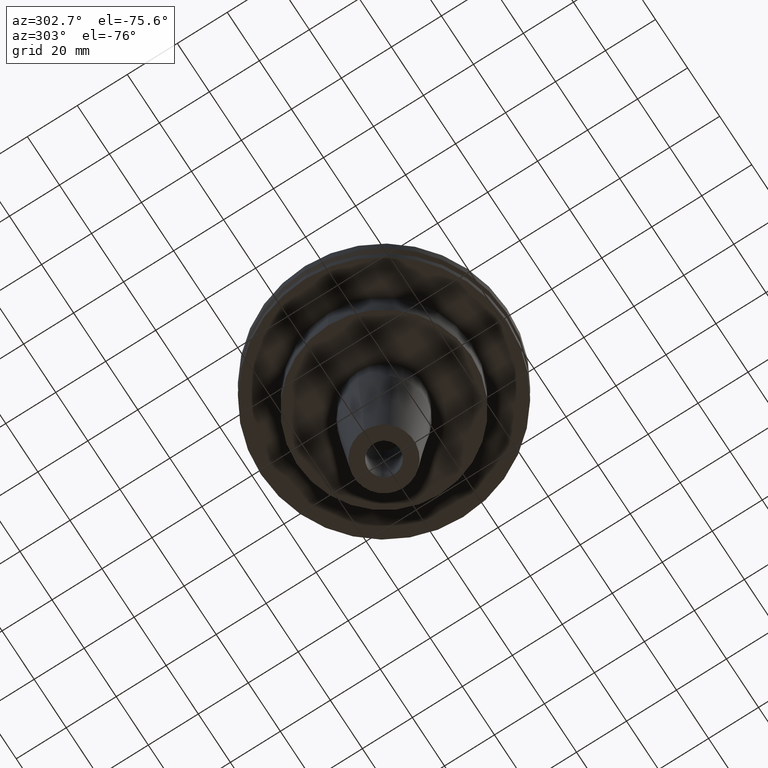
[diagram: clean part render]
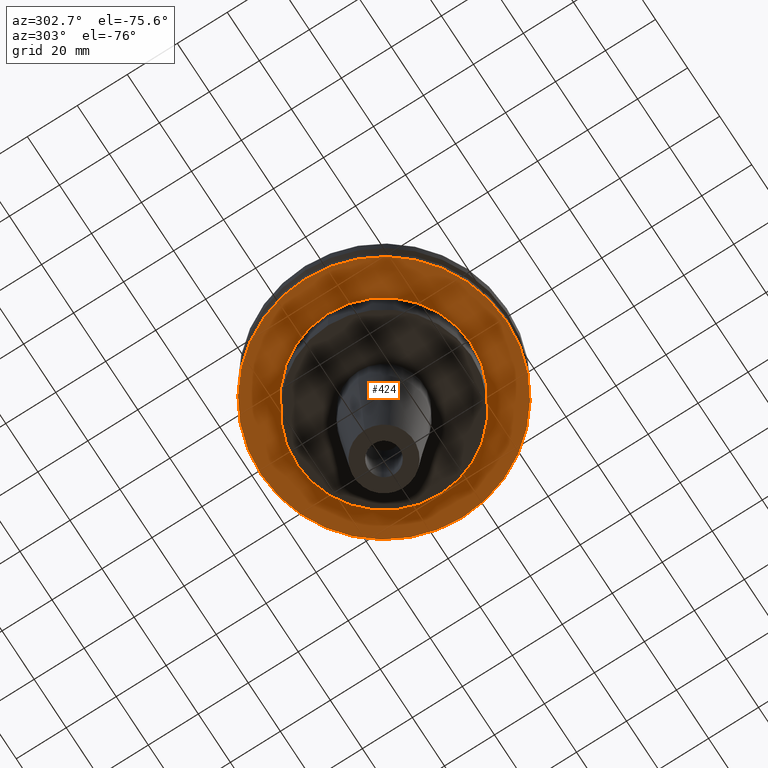
[diagram: same view with one face highlighted and labeled with its STEP entity id]
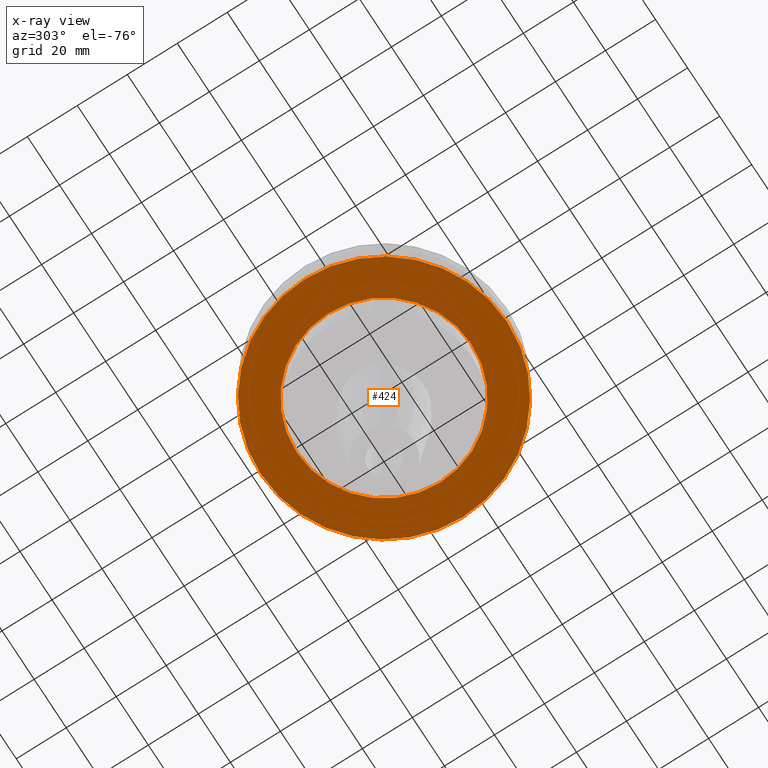
[diagram: x-ray of the same camera — body ghosted, the highlighted face saturated]
A machine part, auxiliary view. The second image highlights one B-rep face of the part: STEP entity #424.
The next image is the same camera in x-ray: the body ghosted, the highlighted face saturated — about 0% of this face is hidden behind the body in this view.
In plain terms, the highlighted planar face has unit normal (0, -0, 1).
Its self-contained STEP definition (entity closure, byte-faithful):
#15 = DIRECTION ( 'NONE',  ( -0.000000000000000000, -0.000000000000000000, 1.000000000000000000 ) ) ;
#20 = ORIENTED_EDGE ( 'NONE', *, *, #829, .T. ) ;
#36 = DIRECTION ( 'NONE',  ( 1.000000000000000000, 0.000000000000000000, 0.000000000000000000 ) ) ;
#44 = AXIS2_PLACEMENT_3D ( 'NONE', #336, #388, #597 ) ;
#55 = VERTEX_POINT ( 'NONE', #470 ) ;
#77 = CIRCLE ( 'NONE', #44, 49.21499999999998920 ) ;
#84 = DIRECTION ( 'NONE',  ( 1.000000000000000000, 0.000000000000000000, 0.000000000000000000 ) ) ;
#88 = EDGE_CURVE ( 'NONE', #55, #288, #718, .T. ) ;
#130 = CARTESIAN_POINT ( 'NONE',  ( 0.000000000000000000, 0.000000000000000000, -19.04999999999999716 ) ) ;
#155 = DIRECTION ( 'NONE',  ( 0.000000000000000000, -0.000000000000000000, 1.000000000000000000 ) ) ;
#168 = ORIENTED_EDGE ( 'NONE', *, *, #604, .F. ) ;
#188 = CIRCLE ( 'NONE', #283, 34.92499999999999716 ) ;
#214 = CARTESIAN_POINT ( 'NONE',  ( 0.000000000000000000, 49.21499999999998920, -19.04999999999999716 ) ) ;
#234 = ORIENTED_EDGE ( 'NONE', *, *, #88, .T. ) ;
#267 = CARTESIAN_POINT ( 'NONE',  ( -49.21499999999998920, 6.027099222003697037E-15, -19.04999999999999716 ) ) ;
#283 = AXIS2_PLACEMENT_3D ( 'NONE', #290, #614, #36 ) ;
#288 = VERTEX_POINT ( 'NONE', #418 ) ;
#290 = CARTESIAN_POINT ( 'NONE',  ( 0.000000000000000000, 0.000000000000000000, -19.04999999999999716 ) ) ;
#301 = CARTESIAN_POINT ( 'NONE',  ( 49.21499999999998920, 0.000000000000000000, -19.04999999999999716 ) ) ;
#318 = CIRCLE ( 'NONE', #428, 49.21499999999998920 ) ;
#329 = AXIS2_PLACEMENT_3D ( 'NONE', #214, #155, #84 ) ;
#335 = DIRECTION ( 'NONE',  ( -0.000000000000000000, -0.000000000000000000, 1.000000000000000000 ) ) ;
#336 = CARTESIAN_POINT ( 'NONE',  ( 0.000000000000000000, 0.000000000000000000, -19.04999999999999716 ) ) ;
#388 = DIRECTION ( 'NONE',  ( -0.000000000000000000, -0.000000000000000000, 1.000000000000000000 ) ) ;
#397 = EDGE_CURVE ( 'NONE', #663, #830, #318, .T. ) ;
#415 = FACE_OUTER_BOUND ( 'NONE', #732, .T. ) ;
#418 = CARTESIAN_POINT ( 'NONE',  ( 34.92499999999999716, 0.000000000000000000, -19.04999999999999716 ) ) ;
#424 = ADVANCED_FACE ( 'NONE', ( #415, #499 ), #700, .F. ) ;
#427 = AXIS2_PLACEMENT_3D ( 'NONE', #130, #335, #852 ) ;
#428 = AXIS2_PLACEMENT_3D ( 'NONE', #696, #15, #682 ) ;
#470 = CARTESIAN_POINT ( 'NONE',  ( -34.92499999999999716, 4.277078946022130887E-15, -19.04999999999999716 ) ) ;
#499 = FACE_BOUND ( 'NONE', #777, .T. ) ;
#597 = DIRECTION ( 'NONE',  ( 1.000000000000000000, 0.000000000000000000, 0.000000000000000000 ) ) ;
#604 = EDGE_CURVE ( 'NONE', #830, #663, #77, .T. ) ;
#614 = DIRECTION ( 'NONE',  ( -0.000000000000000000, -0.000000000000000000, 1.000000000000000000 ) ) ;
#663 = VERTEX_POINT ( 'NONE', #267 ) ;
#682 = DIRECTION ( 'NONE',  ( 1.000000000000000000, 0.000000000000000000, 0.000000000000000000 ) ) ;
#696 = CARTESIAN_POINT ( 'NONE',  ( 0.000000000000000000, 0.000000000000000000, -19.04999999999999716 ) ) ;
#700 = PLANE ( 'NONE',  #329 ) ;
#718 = CIRCLE ( 'NONE', #427, 34.92499999999999716 ) ;
#732 = EDGE_LOOP ( 'NONE', ( #168, #840 ) ) ;
#777 = EDGE_LOOP ( 'NONE', ( #20, #234 ) ) ;
#829 = EDGE_CURVE ( 'NONE', #288, #55, #188, .T. ) ;
#830 = VERTEX_POINT ( 'NONE', #301 ) ;
#840 = ORIENTED_EDGE ( 'NONE', *, *, #397, .F. ) ;
#852 = DIRECTION ( 'NONE',  ( 1.000000000000000000, 0.000000000000000000, 0.000000000000000000 ) ) ;